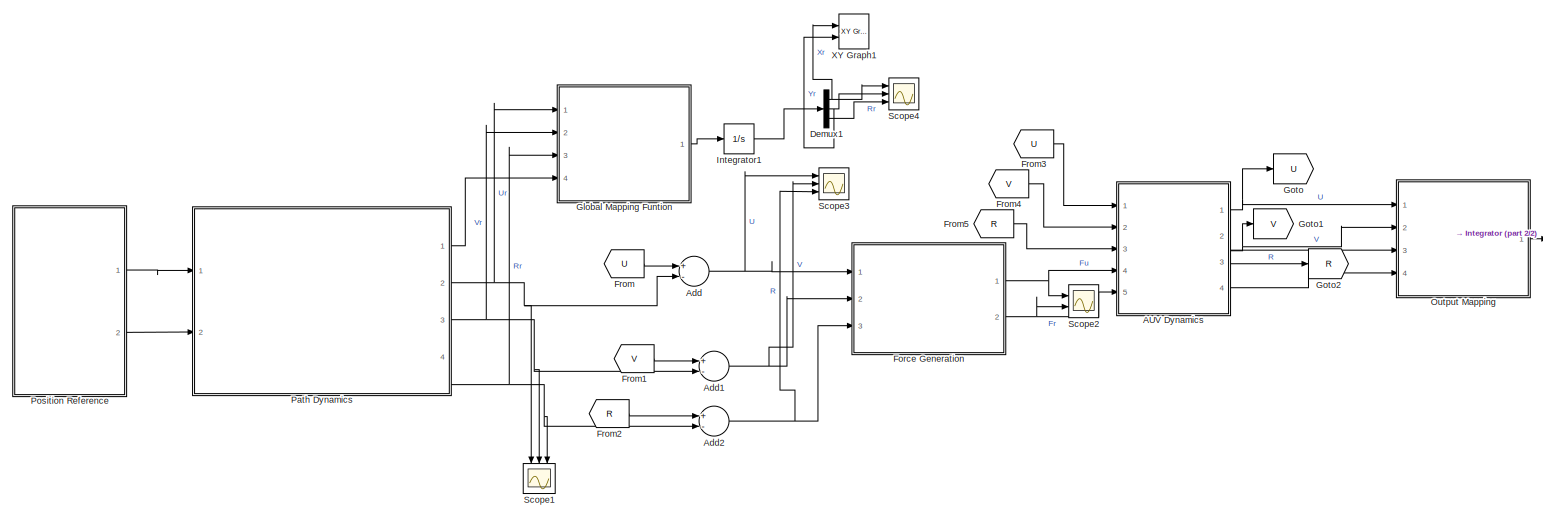
[diagram: root canvas - part 1/2, most of the canvas]
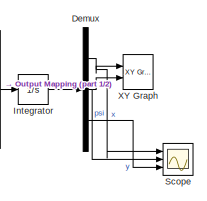
[diagram: root canvas - part 2/2, middle right region]
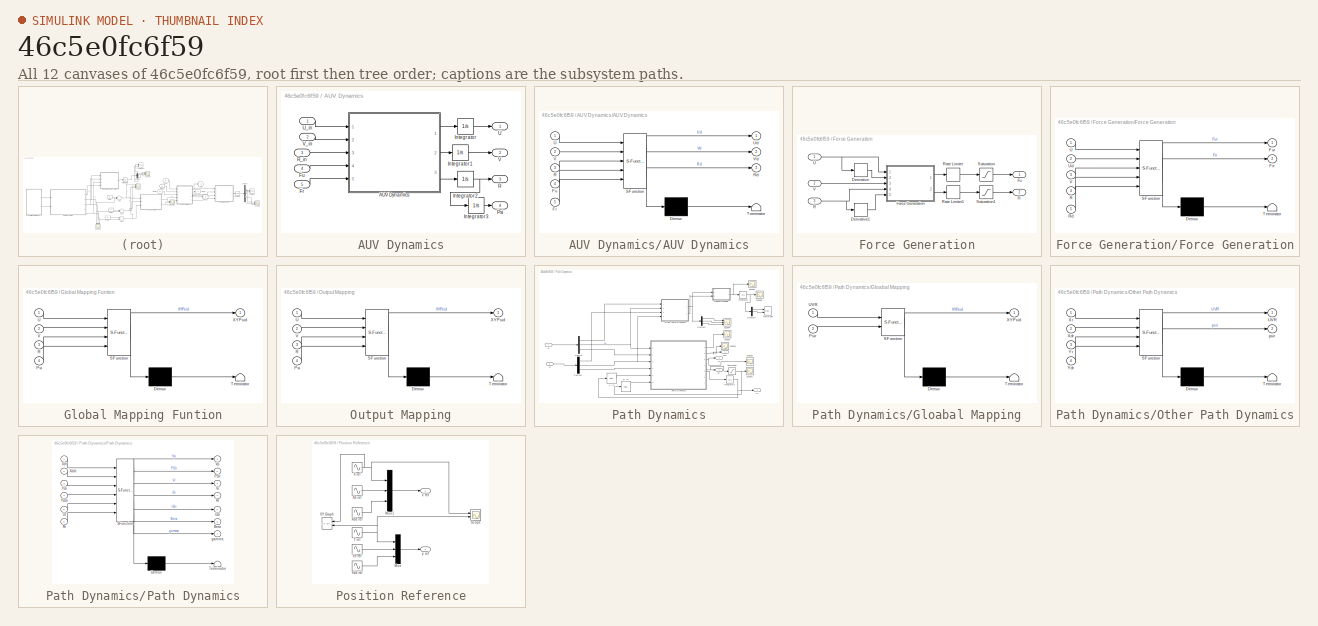
[diagram: thumbnail index - all 12 canvases of the model, root first then tree order]
MODEL slx_46c5e0fc6f59
KIND model
CONFIG AbsTol = auto
CONFIG EnableMultiTasking = off
CONFIG FixedStep = auto
CONFIG MaxStep = auto
CONFIG MinStep = auto
CONFIG RelTol = 1e-3
CONFIG SampleTimeConstraint = Unconstrained
CONFIG Solver = ode45
CONFIG SolverName = ode45
CONFIG StartTime = 0.0
CONFIG StopTime = 600
BLOCK [SubSystem] AUV Dynamics
  Ports = [5, 4]
  RequestExecContextInheritance = off
BLOCK [SubSystem] AUV Dynamics/AUV Dynamics
  ErrorFcn = Stateflow.Translate.translate
  PermitHierarchicalResolution = ExplicitOnly
  Ports = [5, 3]
  RequestExecContextInheritance = off
  SFBlockType = MATLAB Function
  TreatAsAtomicUnit = on
BLOCK [Demux] AUV Dynamics/AUV Dynamics/ Demux 
  Outputs = 1
  Ports = [1, 1]
BLOCK [S-Function] AUV Dynamics/AUV Dynamics/ SFunction 
  EnableBusSupport = on
  FunctionName = sf_sfun
  PortCounts = [5 4]
  Ports = [5, 4]
  SFcnIsStateOwnerBlock = off
  SFunctionDeploymentMode = off
  Tag = Stateflow S-Function 3
BLOCK [Terminator] AUV Dynamics/AUV Dynamics/ Terminator 
BLOCK [Inport] AUV Dynamics/AUV Dynamics/Fr
  IconDisplay = Port number
  Port = 5
BLOCK [Inport] AUV Dynamics/AUV Dynamics/Fu
  IconDisplay = Port number
  Port = 4
BLOCK [Inport] AUV Dynamics/AUV Dynamics/R
  IconDisplay = Port number
  Port = 3
BLOCK [Outport] AUV Dynamics/AUV Dynamics/Rd
  IconDisplay = Port number
  Port = 3
BLOCK [Inport] AUV Dynamics/AUV Dynamics/U
  IconDisplay = Port number
BLOCK [Outport] AUV Dynamics/AUV Dynamics/Ud
  IconDisplay = Port number
BLOCK [Inport] AUV Dynamics/AUV Dynamics/V
  IconDisplay = Port number
  Port = 2
BLOCK [Outport] AUV Dynamics/AUV Dynamics/Vd
  IconDisplay = Port number
  Port = 2
BLOCK [Inport] AUV Dynamics/Fr
  IconDisplay = Port number
  Port = 5
BLOCK [Inport] AUV Dynamics/Fu
  IconDisplay = Port number
  Port = 4
BLOCK [Integrator] AUV Dynamics/Integrator
  Ports = [1, 1]
BLOCK [Integrator] AUV Dynamics/Integrator1
  Ports = [1, 1]
BLOCK [Integrator] AUV Dynamics/Integrator2
  Ports = [1, 1]
BLOCK [Integrator] AUV Dynamics/Integrator3
  Ports = [1, 1]
BLOCK [Outport] AUV Dynamics/Psi
  IconDisplay = Port number
  Port = 4
BLOCK [Outport] AUV Dynamics/R
  IconDisplay = Port number
  Port = 3
BLOCK [Inport] AUV Dynamics/R_in
  IconDisplay = Port number
  Port = 3
BLOCK [Outport] AUV Dynamics/U
  IconDisplay = Port number
BLOCK [Inport] AUV Dynamics/U_in
  IconDisplay = Port number
BLOCK [Outport] AUV Dynamics/V
  IconDisplay = Port number
  Port = 2
BLOCK [Inport] AUV Dynamics/V_in
  IconDisplay = Port number
  Port = 2
BLOCK [Sum] Add
  InputSameDT = off
  Inputs = +-
  OutDataTypeStr = Inherit: Inherit via internal rule
  Ports = [2, 1]
  SaturateOnIntegerOverflow = off
BLOCK [Sum] Add1
  InputSameDT = off
  Inputs = +-
  OutDataTypeStr = Inherit: Inherit via internal rule
  Ports = [2, 1]
  SaturateOnIntegerOverflow = off
BLOCK [Sum] Add2
  InputSameDT = off
  Inputs = +-
  OutDataTypeStr = Inherit: Inherit via internal rule
  Ports = [2, 1]
  SaturateOnIntegerOverflow = off
BLOCK [Demux] Demux
  DisplayOption = bar
  Outputs = 3
  Ports = [1, 3]
BLOCK [Demux] Demux1
  DisplayOption = bar
  Outputs = 3
  Ports = [1, 3]
BLOCK [SubSystem] Force Generation
  Ports = [3, 2]
  RequestExecContextInheritance = off
BLOCK [Derivative] Force Generation/Derivative
BLOCK [Derivative] Force Generation/Derivative1
BLOCK [SubSystem] Force Generation/Force Generation
  ErrorFcn = Stateflow.Translate.translate
  PermitHierarchicalResolution = ExplicitOnly
  Ports = [5, 2]
  RequestExecContextInheritance = off
  SFBlockType = MATLAB Function
  TreatAsAtomicUnit = on
BLOCK [Demux] Force Generation/Force Generation/ Demux 
  Outputs = 1
  Ports = [1, 1]
BLOCK [S-Function] Force Generation/Force Generation/ SFunction 
  EnableBusSupport = on
  FunctionName = sf_sfun
  PortCounts = [5 3]
  Ports = [5, 3]
  SFcnIsStateOwnerBlock = off
  SFunctionDeploymentMode = off
  Tag = Stateflow S-Function 1
BLOCK [Terminator] Force Generation/Force Generation/ Terminator 
BLOCK [Outport] Force Generation/Force Generation/Frr
  IconDisplay = Port number
  Port = 2
BLOCK [Outport] Force Generation/Force Generation/Fur
  IconDisplay = Port number
BLOCK [Inport] Force Generation/Force Generation/R
  IconDisplay = Port number
  Port = 4
BLOCK [Inport] Force Generation/Force Generation/Rd
  IconDisplay = Port number
  Port = 5
BLOCK [Inport] Force Generation/Force Generation/U
  IconDisplay = Port number
BLOCK [Inport] Force Generation/Force Generation/Ud
  IconDisplay = Port number
  Port = 2
BLOCK [Inport] Force Generation/Force Generation/V
  IconDisplay = Port number
  Port = 3
BLOCK [Outport] Force Generation/Fr
  IconDisplay = Port number
  Port = 2
BLOCK [Outport] Force Generation/Fu
  IconDisplay = Port number
BLOCK [Inport] Force Generation/R
  IconDisplay = Port number
  Port = 3
BLOCK [RateLimiter] Force Generation/Rate Limiter
  FallingSlewLimit = -50
  RisingSlewLimit = 50
  SampleTimeMode = inherited
BLOCK [RateLimiter] Force Generation/Rate Limiter1
  FallingSlewLimit = -50
  RisingSlewLimit = 50
  SampleTimeMode = inherited
BLOCK [Saturate] Force Generation/Saturation
  InputPortMap = u0
  LowerLimit = -50
  Ports = [1, 1]
  UpperLimit = 50
BLOCK [Saturate] Force Generation/Saturation1
  InputPortMap = u0
  LowerLimit = -50
  Ports = [1, 1]
  UpperLimit = 50
BLOCK [Inport] Force Generation/U
  IconDisplay = Port number
BLOCK [Inport] Force Generation/V
  IconDisplay = Port number
  Port = 2
BLOCK [From] From
  GotoTag = U
BLOCK [From] From1
  GotoTag = V
BLOCK [From] From2
  GotoTag = R
BLOCK [From] From3
  GotoTag = U
BLOCK [From] From4
  GotoTag = V
BLOCK [From] From5
  GotoTag = R
BLOCK [SubSystem] Global Mapping Funtion
  ErrorFcn = Stateflow.Translate.translate
  PermitHierarchicalResolution = ExplicitOnly
  Ports = [4, 1]
  RequestExecContextInheritance = off
  SFBlockType = MATLAB Function
  TreatAsAtomicUnit = on
BLOCK [Demux] Global Mapping Funtion/ Demux 
  Outputs = 1
  Ports = [1, 1]
BLOCK [S-Function] Global Mapping Funtion/ SFunction 
  EnableBusSupport = on
  FunctionName = sf_sfun
  PortCounts = [4 2]
  Ports = [4, 2]
  SFcnIsStateOwnerBlock = off
  SFunctionDeploymentMode = off
  Tag = Stateflow S-Function 5
BLOCK [Terminator] Global Mapping Funtion/ Terminator 
BLOCK [Inport] Global Mapping Funtion/Psi
  IconDisplay = Port number
  Port = 4
BLOCK [Inport] Global Mapping Funtion/R
  IconDisplay = Port number
  Port = 3
BLOCK [Inport] Global Mapping Funtion/U
  IconDisplay = Port number
BLOCK [Inport] Global Mapping Funtion/V
  IconDisplay = Port number
  Port = 2
BLOCK [Outport] Global Mapping Funtion/XYPsid
  IconDisplay = Port number
BLOCK [Goto] Goto
  GotoTag = U
BLOCK [Goto] Goto1
  GotoTag = V
BLOCK [Goto] Goto2
  GotoTag = R
BLOCK [Integrator] Integrator
  Ports = [1, 1]
BLOCK [Integrator] Integrator1
  Ports = [1, 1]
BLOCK [SubSystem] Output Mapping
  ErrorFcn = Stateflow.Translate.translate
  PermitHierarchicalResolution = ExplicitOnly
  Ports = [4, 1]
  RequestExecContextInheritance = off
  SFBlockType = MATLAB Function
  TreatAsAtomicUnit = on
BLOCK [Demux] Output Mapping/ Demux 
  Outputs = 1
  Ports = [1, 1]
BLOCK [S-Function] Output Mapping/ SFunction 
  EnableBusSupport = on
  FunctionName = sf_sfun
  PortCounts = [4 2]
  Ports = [4, 2]
  SFcnIsStateOwnerBlock = off
  SFunctionDeploymentMode = off
  Tag = Stateflow S-Function 4
BLOCK [Terminator] Output Mapping/ Terminator 
BLOCK [Inport] Output Mapping/Psi
  IconDisplay = Port number
  Port = 4
BLOCK [Inport] Output Mapping/R
  IconDisplay = Port number
  Port = 3
BLOCK [Inport] Output Mapping/U
  IconDisplay = Port number
BLOCK [Inport] Output Mapping/V
  IconDisplay = Port number
  Port = 2
BLOCK [Outport] Output Mapping/XYPsid
  IconDisplay = Port number
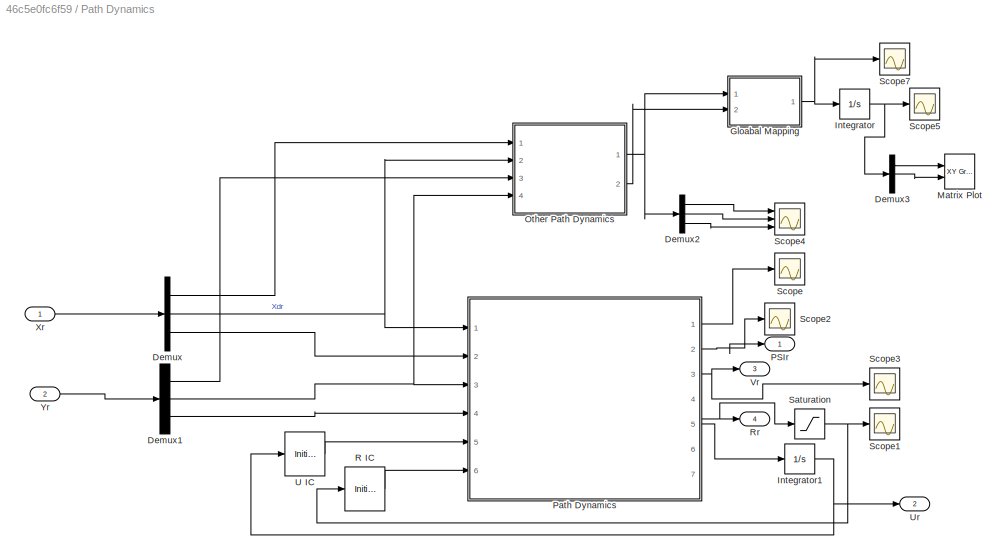
BLOCK [SubSystem] Path Dynamics
  Ports = [2, 4]
  RequestExecContextInheritance = off
BLOCK [Demux] Path Dynamics/Demux
  DisplayOption = bar
  Outputs = 3
  Ports = [1, 3]
BLOCK [Demux] Path Dynamics/Demux1
  DisplayOption = bar
  Outputs = 3
  Ports = [1, 3]
BLOCK [Demux] Path Dynamics/Demux2
  DisplayOption = bar
  Outputs = 3
  Ports = [1, 3]
BLOCK [Demux] Path Dynamics/Demux3
  DisplayOption = bar
  Outputs = 3
  Ports = [1, 3]
BLOCK [SubSystem] Path Dynamics/Gloabal Mapping
  ErrorFcn = Stateflow.Translate.translate
  PermitHierarchicalResolution = ExplicitOnly
  Ports = [2, 1]
  RequestExecContextInheritance = off
  SFBlockType = MATLAB Function
  TreatAsAtomicUnit = on
BLOCK [Demux] Path Dynamics/Gloabal Mapping/ Demux 
  Outputs = 1
  Ports = [1, 1]
BLOCK [S-Function] Path Dynamics/Gloabal Mapping/ SFunction 
  EnableBusSupport = on
  FunctionName = sf_sfun
  PortCounts = [2 2]
  Ports = [2, 2]
  SFcnIsStateOwnerBlock = off
  SFunctionDeploymentMode = off
  Tag = Stateflow S-Function 7
BLOCK [Terminator] Path Dynamics/Gloabal Mapping/ Terminator 
BLOCK [Inport] Path Dynamics/Gloabal Mapping/Psir
  IconDisplay = Port number
  Port = 2
BLOCK [Inport] Path Dynamics/Gloabal Mapping/UVR
  IconDisplay = Port number
BLOCK [Outport] Path Dynamics/Gloabal Mapping/XYPsid
  IconDisplay = Port number
BLOCK [Integrator] Path Dynamics/Integrator
  Ports = [1, 1]
BLOCK [Integrator] Path Dynamics/Integrator1
  Ports = [1, 1]
BLOCK [Reference] Path Dynamics/Matrix Plot  REF=simulink/Sinks/XY Graph
  Ports = [2]
  SourceBlock = simulink/Sinks/XY Graph
  SourceProductBaseCode = SL
  SourceProductName = Simulink
  SourceType = XY scope.
BLOCK [SubSystem] Path Dynamics/Other Path Dynamics
  ErrorFcn = Stateflow.Translate.translate
  PermitHierarchicalResolution = ExplicitOnly
  Ports = [4, 2]
  RequestExecContextInheritance = off
  SFBlockType = MATLAB Function
  TreatAsAtomicUnit = on
BLOCK [Demux] Path Dynamics/Other Path Dynamics/ Demux 
  Outputs = 1
  Ports = [1, 1]
BLOCK [S-Function] Path Dynamics/Other Path Dynamics/ SFunction 
  EnableBusSupport = on
  FunctionName = sf_sfun
  PortCounts = [4 3]
  Ports = [4, 3]
  SFcnIsStateOwnerBlock = off
  SFunctionDeploymentMode = off
  Tag = Stateflow S-Function 6
BLOCK [Terminator] Path Dynamics/Other Path Dynamics/ Terminator 
BLOCK [Outport] Path Dynamics/Other Path Dynamics/UVR
  IconDisplay = Port number
BLOCK [Inport] Path Dynamics/Other Path Dynamics/Xdr
  IconDisplay = Port number
  Port = 2
BLOCK [Inport] Path Dynamics/Other Path Dynamics/Xr
  IconDisplay = Port number
BLOCK [Inport] Path Dynamics/Other Path Dynamics/Ydr
  IconDisplay = Port number
  Port = 4
BLOCK [Inport] Path Dynamics/Other Path Dynamics/Yr
  IconDisplay = Port number
  Port = 3
BLOCK [Outport] Path Dynamics/Other Path Dynamics/psir
  IconDisplay = Port number
  Port = 2
BLOCK [Outport] Path Dynamics/PSIr
  IconDisplay = Port number
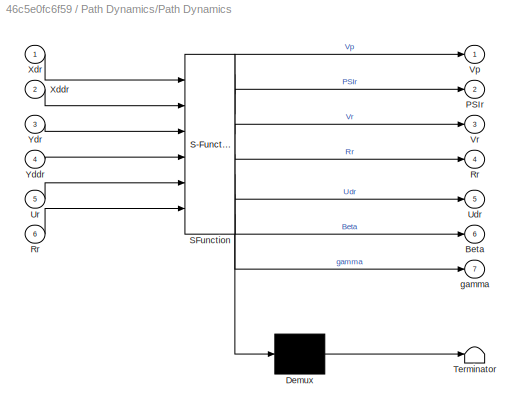
BLOCK [SubSystem] Path Dynamics/Path Dynamics
  ErrorFcn = Stateflow.Translate.translate
  PermitHierarchicalResolution = ExplicitOnly
  Ports = [6, 7]
  RequestExecContextInheritance = off
  SFBlockType = MATLAB Function
  TreatAsAtomicUnit = on
BLOCK [Demux] Path Dynamics/Path Dynamics/ Demux 
  Outputs = 1
  Ports = [1, 1]
BLOCK [S-Function] Path Dynamics/Path Dynamics/ SFunction 
  EnableBusSupport = on
  FunctionName = sf_sfun
  PortCounts = [6 8]
  Ports = [6, 8]
  SFcnIsStateOwnerBlock = off
  SFunctionDeploymentMode = off
  Tag = Stateflow S-Function 2
BLOCK [Terminator] Path Dynamics/Path Dynamics/ Terminator 
BLOCK [Outport] Path Dynamics/Path Dynamics/Beta
  IconDisplay = Port number
  Port = 6
BLOCK [Outport] Path Dynamics/Path Dynamics/PSIr
  IconDisplay = Port number
  Port = 2
BLOCK [Outport] Path Dynamics/Path Dynamics/Rr
  IconDisplay = Port number
  Port = 4
BLOCK [Inport] Path Dynamics/Path Dynamics/Rr 
  IconDisplay = Port number
  Port = 6
BLOCK [Outport] Path Dynamics/Path Dynamics/Udr
  IconDisplay = Port number
  Port = 5
BLOCK [Inport] Path Dynamics/Path Dynamics/Ur
  IconDisplay = Port number
  Port = 5
BLOCK [Outport] Path Dynamics/Path Dynamics/Vp
  IconDisplay = Port number
BLOCK [Outport] Path Dynamics/Path Dynamics/Vr
  IconDisplay = Port number
  Port = 3
BLOCK [Inport] Path Dynamics/Path Dynamics/Xddr
  IconDisplay = Port number
  Port = 2
BLOCK [Inport] Path Dynamics/Path Dynamics/Xdr
  IconDisplay = Port number
BLOCK [Inport] Path Dynamics/Path Dynamics/Yddr
  IconDisplay = Port number
  Port = 4
BLOCK [Inport] Path Dynamics/Path Dynamics/Ydr
  IconDisplay = Port number
  Port = 3
BLOCK [Outport] Path Dynamics/Path Dynamics/gamma
  IconDisplay = Port number
  Port = 7
BLOCK [InitialCondition] Path Dynamics/R IC
  Value = 0.001
BLOCK [Outport] Path Dynamics/Rr
  IconDisplay = Port number
  Port = 4
BLOCK [Saturate] Path Dynamics/Saturation
  InputPortMap = u0
  Ports = [1, 1]
BLOCK [Scope] Path Dynamics/Scope
  Floating = off
  NumInputPorts = 1
  Ports = [1]
  ScopeSpecificationString = Simulink.scopes.TimeScopeBlockCfg('CurrentConfiguration', extmgr.ConfigurationSet(extmgr.Configuration('Core','General UI',true),extmgr.Configuration('Core','Source UI',true),extmgr.Configuration('Sources','WiredSimulink',true,'DataLoggingVariableName','ScopeData4'),extmgr.Configuration('Visuals','Time Domain',true,'SerializedDisplays',{struct('MinYLimReal','0.09','MaxYLimReal','0.11','YLabelReal'...<+1393ch>
BLOCK [Scope] Path Dynamics/Scope1
  Floating = off
  NumInputPorts = 1
  Ports = [1]
  ScopeSpecificationString = Simulink.scopes.TimeScopeBlockCfg('CurrentConfiguration', extmgr.ConfigurationSet(extmgr.Configuration('Core','General UI',true),extmgr.Configuration('Core','Source UI',true),extmgr.Configuration('Sources','WiredSimulink',true,'DataLoggingVariableName','ScopeData5'),extmgr.Configuration('Visuals','Time Domain',true,'SerializedDisplays',{struct('MinYLimReal','-0.07375','MaxYLimReal','0.56375','YLab...<+1438ch>
BLOCK [Scope] Path Dynamics/Scope2
  Floating = off
  NumInputPorts = 1
  Ports = [1]
  ScopeSpecificationString = Simulink.scopes.TimeScopeBlockCfg('CurrentConfiguration', extmgr.ConfigurationSet(extmgr.Configuration('Core','General UI',true),extmgr.Configuration('Core','Source UI',true),extmgr.Configuration('Sources','WiredSimulink',true,'DataLoggingVariableName','ScopeData6'),extmgr.Configuration('Visuals','Time Domain',true,'SerializedDisplays',{struct('MinYLimReal','-1.57239','MaxYLimReal','-1.55951','YLa...<+1379ch>
BLOCK [Scope] Path Dynamics/Scope3
  Floating = off
  NumInputPorts = 1
  Ports = [1]
  ScopeSpecificationString = Simulink.scopes.TimeScopeBlockCfg('CurrentConfiguration', extmgr.ConfigurationSet(extmgr.Configuration('Core','General UI',true),extmgr.Configuration('Core','Source UI',true),extmgr.Configuration('Sources','WiredSimulink',true,'DataLoggingVariableName','ScopeData7'),extmgr.Configuration('Visuals','Time Domain',true,'SerializedDisplays',{struct('MinYLimReal','-0.00308','MaxYLimReal','1.02768','YLab...<+1419ch>
BLOCK [Scope] Path Dynamics/Scope4
  Floating = off
  NumInputPorts = 3
  Ports = [3]
  ScopeSpecificationString = Simulink.scopes.TimeScopeBlockCfg('CurrentConfiguration', extmgr.ConfigurationSet(extmgr.Configuration('Core','General UI',true),extmgr.Configuration('Core','Source UI',true),extmgr.Configuration('Sources','WiredSimulink',true,'DataLoggingVariableName','ScopeData1'),extmgr.Configuration('Visuals','Time Domain',true,'SerializedDisplays',{struct('MinYLimReal','-0.14855','MaxYLimReal','0.33695','YLab...<+1387ch>
BLOCK [Scope] Path Dynamics/Scope5
  Floating = off
  NumInputPorts = 1
  Ports = [1]
  ScopeSpecificationString = Simulink.scopes.TimeScopeBlockCfg('CurrentConfiguration', extmgr.ConfigurationSet(extmgr.Configuration('Core','General UI',true),extmgr.Configuration('Core','Source UI',true),extmgr.Configuration('Sources','WiredSimulink',true,'DataLoggingVariableName','ScopeData2'),extmgr.Configuration('Visuals','Time Domain',true,'SerializedDisplays',{struct('MinYLimReal','-139.96723','MaxYLimReal','26.66302','Y...<+1457ch>
BLOCK [Scope] Path Dynamics/Scope7
  Floating = off
  NumInputPorts = 1
  Ports = [1]
  ScopeSpecificationString = Simulink.scopes.TimeScopeBlockCfg('CurrentConfiguration', extmgr.ConfigurationSet(extmgr.Configuration('Core','General UI',true),extmgr.Configuration('Core','Source UI',true),extmgr.Configuration('Sources','WiredSimulink',true,'DataLoggingVariableName','ScopeData4'),extmgr.Configuration('Visuals','Time Domain',true,'SerializedDisplays',{struct('MinYLimReal','-0.03605','MaxYLimReal','0.32445','YLab...<+1416ch>
BLOCK [InitialCondition] Path Dynamics/U IC
  Value = 0.001
BLOCK [Outport] Path Dynamics/Ur
  IconDisplay = Port number
  Port = 2
BLOCK [Outport] Path Dynamics/Vr
  IconDisplay = Port number
  Port = 3
BLOCK [Inport] Path Dynamics/Xr
  IconDisplay = Port number
BLOCK [Inport] Path Dynamics/Yr
  IconDisplay = Port number
  Port = 2
BLOCK [SubSystem] Position Reference
  Ports = [0, 2]
  RequestExecContextInheritance = off
BLOCK [Mux] Position Reference/Mux
  DisplayOption = bar
  Inputs = 3
  Ports = [3, 1]
BLOCK [Mux] Position Reference/Mux1
  DisplayOption = bar
  Inputs = 3
  Ports = [3, 1]
BLOCK [Scope] Position Reference/Scope
  Floating = off
  NumInputPorts = 2
  Ports = [2]
  ScopeSpecificationString = Simulink.scopes.TimeScopeBlockCfg('CurrentConfiguration', extmgr.ConfigurationSet(extmgr.Configuration('Core','General UI',true),extmgr.Configuration('Core','Source UI',true),extmgr.Configuration('Sources','WiredSimulink',true,'DataLoggingVariableName','ScopeData3'),extmgr.Configuration('Visuals','Time Domain',true,'SerializedDisplays',{struct('MinYLimReal','-1.25','MaxYLimReal','11.25','YLabelRea...<+1356ch>
BLOCK [Sin] Position Reference/X ref
  Amplitude = Amp
  Frequency = Freq
  Ports = [0, 1]
  SampleTime = 0
BLOCK [Reference] Position Reference/XY Graph  REF=simulink/Sinks/XY Graph
  Ports = [2]
  SourceBlock = simulink/Sinks/XY Graph
  SourceProductBaseCode = SL
  SourceProductName = Simulink
  SourceType = XY scope.
BLOCK [Sin] Position Reference/Xd ref
  Amplitude = Amp*Freq
  Frequency = Freq
  Phase = pi()/2
  Ports = [0, 1]
  SampleTime = 0
BLOCK [Sin] Position Reference/Xdd ref
  Amplitude = -Amp*Freq^2
  Frequency = Freq
  Ports = [0, 1]
  SampleTime = 0
BLOCK [Sin] Position Reference/Y ref
  Amplitude = Amp
  Frequency = Freq
  Phase = pi()/2
  Ports = [0, 1]
  SampleTime = 0
BLOCK [Sin] Position Reference/Yd ref
  Amplitude = -Amp*Freq
  Frequency = Freq
  Ports = [0, 1]
  SampleTime = 0
BLOCK [Sin] Position Reference/Ydd ref
  Amplitude = -Amp*Freq^2
  Frequency = Freq
  Phase = pi()/2
  Ports = [0, 1]
  SampleTime = 0
BLOCK [Outport] Position Reference/x ref
  IconDisplay = Port number
BLOCK [Outport] Position Reference/y ref
  IconDisplay = Port number
  Port = 2
BLOCK [Scope] Scope
  Floating = off
  NumInputPorts = 3
  Ports = [3]
  ScopeSpecificationString = Simulink.scopes.TimeScopeBlockCfg('CurrentConfiguration', extmgr.ConfigurationSet(extmgr.Configuration('Core','General UI',true),extmgr.Configuration('Core','Source UI',true),extmgr.Configuration('Sources','WiredSimulink',true,'DataLoggingVariableName','ScopeData1'),extmgr.Configuration('Visuals','Time Domain',true,'SerializedDisplays',{struct('MinYLimReal','-0.36127','MaxYLimReal','0.74284','YLab...<+1455ch>
BLOCK [Scope] Scope1
  Floating = off
  NumInputPorts = 3
  Ports = [3]
  ScopeSpecificationString = Simulink.scopes.TimeScopeBlockCfg('CurrentConfiguration', extmgr.ConfigurationSet(extmgr.Configuration('Core','General UI',true),extmgr.Configuration('Core','Source UI',true),extmgr.Configuration('Sources','WiredSimulink',true,'DataLoggingVariableName','ScopeData2'),extmgr.Configuration('Visuals','Time Domain',true,'SerializedDisplays',{struct('MinYLimReal','-0.11625','MaxYLimReal','1.04625','YLab...<+1481ch>
BLOCK [Scope] Scope2
  Floating = off
  NumInputPorts = 2
  Ports = [2]
  ScopeSpecificationString = Simulink.scopes.TimeScopeBlockCfg('CurrentConfiguration', extmgr.ConfigurationSet(extmgr.Configuration('Core','General UI',true),extmgr.Configuration('Core','Source UI',true),extmgr.Configuration('Sources','WiredSimulink',true,'DataLoggingVariableName','ScopeData3'),extmgr.Configuration('Visuals','Time Domain',true,'SerializedDisplays',{struct('MinYLimReal','-62.5','MaxYLimReal','62.5','YLabelReal...<+1390ch>
BLOCK [Scope] Scope3
  Floating = off
  NumInputPorts = 3
  Ports = [3]
  ScopeSpecificationString = Simulink.scopes.TimeScopeBlockCfg('CurrentConfiguration', extmgr.ConfigurationSet(extmgr.Configuration('Core','General UI',true),extmgr.Configuration('Core','Source UI',true),extmgr.Configuration('Sources','WiredSimulink',true,'DataLoggingVariableName','ScopeData2'),extmgr.Configuration('Visuals','Time Domain',true,'SerializedDisplays',{struct('MinYLimReal','-1.75521','MaxYLimReal','0.19502','YLab...<+1366ch>
BLOCK [Scope] Scope4
  Floating = off
  NumInputPorts = 3
  Ports = [3]
  ScopeSpecificationString = Simulink.scopes.TimeScopeBlockCfg('CurrentConfiguration', extmgr.ConfigurationSet(extmgr.Configuration('Core','General UI',true),extmgr.Configuration('Core','Source UI',true),extmgr.Configuration('Sources','WiredSimulink',true,'DataLoggingVariableName','ScopeData3'),extmgr.Configuration('Visuals','Time Domain',true),extmgr.Configuration('Tools','Plot Navigation',true),extmgr.Configuration('Tools',...<+40ch>
BLOCK [Reference] XY Graph  REF=simulink/Sinks/XY Graph
  Ports = [2]
  SourceBlock = simulink/Sinks/XY Graph
  SourceProductBaseCode = SL
  SourceProductName = Simulink
  SourceType = XY scope.
BLOCK [Reference] XY Graph1  REF=simulink/Sinks/XY Graph
  Ports = [2]
  SourceBlock = simulink/Sinks/XY Graph
  SourceProductBaseCode = SL
  SourceProductName = Simulink
  SourceType = XY scope.
LINE AUV Dynamics/AUV Dynamics:1 -> AUV Dynamics/Integrator:1
LINE AUV Dynamics/AUV Dynamics:2 -> AUV Dynamics/Integrator1:1
LINE AUV Dynamics/AUV Dynamics:3 -> AUV Dynamics/Integrator2:1
LINE AUV Dynamics/Fr:1 -> AUV Dynamics/AUV Dynamics:5
LINE AUV Dynamics/Fu:1 -> AUV Dynamics/AUV Dynamics:4
LINE AUV Dynamics/Integrator1:1 -> AUV Dynamics/V:1
NET AUV Dynamics/Integrator2:1 -> AUV Dynamics/Integrator3:1, AUV Dynamics/R:1
LINE AUV Dynamics/Integrator3:1 -> AUV Dynamics/Psi:1
LINE AUV Dynamics/Integrator:1 -> AUV Dynamics/U:1
LINE AUV Dynamics/R_in:1 -> AUV Dynamics/AUV Dynamics:3
LINE AUV Dynamics/U_in:1 -> AUV Dynamics/AUV Dynamics:1
LINE AUV Dynamics/V_in:1 -> AUV Dynamics/AUV Dynamics:2
NET AUV Dynamics:1 -> Goto:1, Output Mapping:1
NET AUV Dynamics:2 -> Goto1:1, Output Mapping:2
NET AUV Dynamics:3 -> Goto2:1, Output Mapping:3
LINE AUV Dynamics:4 -> Output Mapping:4
NET Add1:1 -> Force Generation:2, Scope3:2
NET Add2:1 -> Force Generation:3, Scope3:3
NET Add:1 -> Force Generation:1, Scope3:1
NET Demux1:1 -> Scope4:1, XY Graph1:1
NET Demux1:2 -> Scope4:2, XY Graph1:2
LINE Demux1:3 -> Scope4:3
NET Demux:1 -> Scope:1, XY Graph:1
NET Demux:2 -> Scope:2, XY Graph:2
LINE Demux:3 -> Scope:3
LINE Force Generation/Derivative1:1 -> Force Generation/Force Generation:5
LINE Force Generation/Derivative:1 -> Force Generation/Force Generation:2
LINE Force Generation/Force Generation:1 -> Force Generation/Rate Limiter:1
LINE Force Generation/Force Generation:2 -> Force Generation/Rate Limiter1:1
NET Force Generation/R:1 -> Force Generation/Derivative1:1, Force Generation/Force Generation:4
LINE Force Generation/Rate Limiter1:1 -> Force Generation/Saturation1:1
LINE Force Generation/Rate Limiter:1 -> Force Generation/Saturation:1
LINE Force Generation/Saturation1:1 -> Force Generation/Fr:1
LINE Force Generation/Saturation:1 -> Force Generation/Fu:1
NET Force Generation/U:1 -> Force Generation/Derivative:1, Force Generation/Force Generation:1
LINE Force Generation/V:1 -> Force Generation/Force Generation:3
NET Force Generation:1 -> AUV Dynamics:4, Scope2:1
NET Force Generation:2 -> AUV Dynamics:5, Scope2:2
LINE From1:1 -> Add1:1
LINE From2:1 -> Add2:1
LINE From3:1 -> AUV Dynamics:1
LINE From4:1 -> AUV Dynamics:2
LINE From5:1 -> AUV Dynamics:3
LINE From:1 -> Add:1
LINE Global Mapping Funtion:1 -> Integrator1:1
LINE Integrator1:1 -> Demux1:1
LINE Integrator:1 -> Demux:1
LINE Output Mapping:1 -> Integrator:1
LINE Path Dynamics/Demux1:1 -> Path Dynamics/Other Path Dynamics:3
NET Path Dynamics/Demux1:2 -> Path Dynamics/Other Path Dynamics:4, Path Dynamics/Path Dynamics:3
LINE Path Dynamics/Demux1:3 -> Path Dynamics/Path Dynamics:4
LINE Path Dynamics/Demux2:1 -> Path Dynamics/Scope4:1
LINE Path Dynamics/Demux2:2 -> Path Dynamics/Scope4:2
LINE Path Dynamics/Demux2:3 -> Path Dynamics/Scope4:3
LINE Path Dynamics/Demux3:1 -> Path Dynamics/Matrix Plot:1
LINE Path Dynamics/Demux3:2 -> Path Dynamics/Matrix Plot:2
LINE Path Dynamics/Demux:1 -> Path Dynamics/Other Path Dynamics:1
NET Path Dynamics/Demux:2 -> Path Dynamics/Other Path Dynamics:2, Path Dynamics/Path Dynamics:1
LINE Path Dynamics/Demux:3 -> Path Dynamics/Path Dynamics:2
NET Path Dynamics/Gloabal Mapping:1 -> Path Dynamics/Integrator:1, Path Dynamics/Scope7:1
NET Path Dynamics/Integrator1:1 -> Path Dynamics/U IC:1, Path Dynamics/Ur:1
NET Path Dynamics/Integrator:1 -> Path Dynamics/Demux3:1, Path Dynamics/Scope5:1
NET Path Dynamics/Other Path Dynamics:1 -> Path Dynamics/Demux2:1, Path Dynamics/Gloabal Mapping:1
LINE Path Dynamics/Other Path Dynamics:2 -> Path Dynamics/Gloabal Mapping:2
LINE Path Dynamics/Path Dynamics:1 -> Path Dynamics/Scope:1
NET Path Dynamics/Path Dynamics:2 -> Path Dynamics/PSIr:1, Path Dynamics/Scope2:1
NET Path Dynamics/Path Dynamics:3 -> Path Dynamics/Scope3:1, Path Dynamics/Vr:1
NET Path Dynamics/Path Dynamics:4 -> Path Dynamics/Rr:1, Path Dynamics/Saturation:1
LINE Path Dynamics/Path Dynamics:5 -> Path Dynamics/Integrator1:1
LINE Path Dynamics/R IC:1 -> Path Dynamics/Path Dynamics:6
NET Path Dynamics/Saturation:1 -> Path Dynamics/R IC:1, Path Dynamics/Scope1:1
LINE Path Dynamics/U IC:1 -> Path Dynamics/Path Dynamics:5
LINE Path Dynamics/Xr:1 -> Path Dynamics/Demux:1
LINE Path Dynamics/Yr:1 -> Path Dynamics/Demux1:1
LINE Path Dynamics:1 -> Global Mapping Funtion:4
NET Path Dynamics:2 -> Add:2, Global Mapping Funtion:1, Scope1:1
NET Path Dynamics:3 -> Add1:2, Global Mapping Funtion:2, Scope1:2
NET Path Dynamics:4 -> Add2:2, Global Mapping Funtion:3, Scope1:3
LINE Position Reference/Mux1:1 -> Position Reference/x ref:1
LINE Position Reference/Mux:1 -> Position Reference/y ref:1
NET Position Reference/X ref:1 -> Position Reference/Mux1:1, Position Reference/Scope:1, Position Reference/XY Graph:1
LINE Position Reference/Xd ref:1 -> Position Reference/Mux1:2
LINE Position Reference/Xdd ref:1 -> Position Reference/Mux1:3
NET Position Reference/Y ref:1 -> Position Reference/Mux:1, Position Reference/Scope:2, Position Reference/XY Graph:2
LINE Position Reference/Yd ref:1 -> Position Reference/Mux:2
LINE Position Reference/Ydd ref:1 -> Position Reference/Mux:3
LINE Position Reference:1 -> Path Dynamics:1
LINE Position Reference:2 -> Path Dynamics:2
note: NET lines group one-source signal fan-out (src -> all destinations, sorted); 1:1 wires keep LINE
CHART Force Generation/Force Generation states=1 transitions=1
  STATE_LABEL 'eML_blk_kernel()'
  STATE_LABEL 'SCRIPT:\nfunction [Fur,Frr] = fcn(U,Ud,V,R,Rd)\n% This function generates the input forces/torques acting on the AUV\n%%%%%%%%%%%%%%%%%%%%%%%%%%%%%%%%%%%%%%%%%%%%%%%%%%%%%%%%%%%%%%%%%%%%%%%%%\n% Inputs:\n    % U - surge velocity of UUV\n    % Ud - derevative of surge velocity\n    % V - sway velocity of UUV\n    % R- yaw velocity of UUV\n    % Rd - derivative of yaw velocity of UUV\n% Outputs:\n    % Fur - r...<+587ch>'
CHART Path Dynamics/Path Dynamics states=1 transitions=1
  STATE_LABEL 'eML_blk_kernel()'
  STATE_LABEL 'SCRIPT:\nfunction [Vp,PSIr,Vr,Rr,Udr,Beta,gamma] = fcn(Xdr,Xddr,Ydr,Yddr,Ur,Rr)\n% Function calculates the desired U,V, and R corresponding to the input\n% reference X, Y\n%%%%%%%%%%%%%%%%%%%%%%%%%%%%%%%%%%%%%%%%%%%%%%%%%%%%%%%%%%%%%%%%%%%%%%%%%%\n% Inputs:\n    % Xdr - reference x velocity\n    % Xddr - refernce x acceleration\n    % Ydr - reference y velocity\n    % Yddr - reference y acceleration\n    % ...<+2093ch>'
CHART AUV Dynamics/AUV Dynamics states=1 transitions=1
  STATE_LABEL 'eML_blk_kernel()'
  STATE_LABEL 'SCRIPT:\nfunction [Ud,Vd,Rd] = fcn(U,V,R,Fu,Fr)\n% Function models the dynamics of the UUV and its response to the force\n% inputs\n%%%%%%%%%%%%%%%%%%%%%%%%%%%%%%%%%%%%%%%%%%%%%%%%%%%%%%%%%%%%%%%%%%%%%%%%\n% Inputs:\n    % U - surge velocity of UUV\n    % V - sway velocity of UUV\n    % R - yaw velocity of UUV\n    % Fu - surge force input\n    % Fr - yaw toque input\n% Outputs:\n    % Ud - derivative of surg...<+808ch>'
CHART Output Mapping states=1 transitions=1
  STATE_LABEL 'eML_blk_kernel()'
  STATE_LABEL 'SCRIPT:\nfunction XYPsid = fcn(U,V,R,Psi)\n% Funtion maps the body fixed velocities to the world-fixed velocities\n%Inputs: U,V,R - surge,sway, yaw velocities of UUV\n    % Psi - orientation of UUV about z axis\n% Outputs:\n    %XYPsid - 3x1 vector of the world-fixed velocities\n %%%%%%%%%%%%%%%%%%%%%%%%%%%%%%%%%%%%%%%%%%%%%%%%%%%%%%%%%%%%%%%%%%%%%%%\n % Mapping\nA = [cos(Psi) -sin(Psi) 0; sin(Psi) cos(Psi...<+43ch>'
CHART Global Mapping Funtion states=1 transitions=1
  STATE_LABEL 'eML_blk_kernel()'
  STATE_LABEL 'SCRIPT:\nfunction XYPsid = fcn(U,V,R,Psi)\n% Debugging funtion\n% Transform back to X, Y to check if path dynamics is outputing correctly\n\nA = [cos(Psi) -sin(Psi) 0; sin(Psi) cos(Psi) 0; 0 0 1];\nQ = [U; V; R];\nXYPsid = A*Q;\n\n'
CHART Path Dynamics/Other Path Dynamics states=1 transitions=1
  STATE_LABEL 'eML_blk_kernel()'
  STATE_LABEL 'SCRIPT:\nfunction [UVR,psir] = fcn(Xr,Xdr,Yr,Ydr)\n% Transform from Global/inertial to body coordinate system\n% DEbugging funtion\n% Trying to figure out if this is a better method\n\n% Calculate reference psi\npsir = atan(Yr/Xr);\n\n% Calculates derivative of ref psi\n    % Not entirely sure about these "inputs"\npsidr = 1/(1+psir^2);\n\n% Transformation matrices\nB = [Xdr; Ydr; psidr];\nA = [cos(psir) -sin(ps...<+49ch>'
CHART Path Dynamics/Gloabal Mapping states=1 transitions=1
  STATE_LABEL 'eML_blk_kernel()'
  STATE_LABEL 'SCRIPT:\nfunction XYPsid = fcn(UVR,Psir)\n% Transforming back into x, y for debuging to check if method works\n\nA = [cos(Psir) -sin(Psir) 0; sin(Psir) cos(Psir) 0; 0 0 1];\nXYPsid = A*UVR;\n\n'
